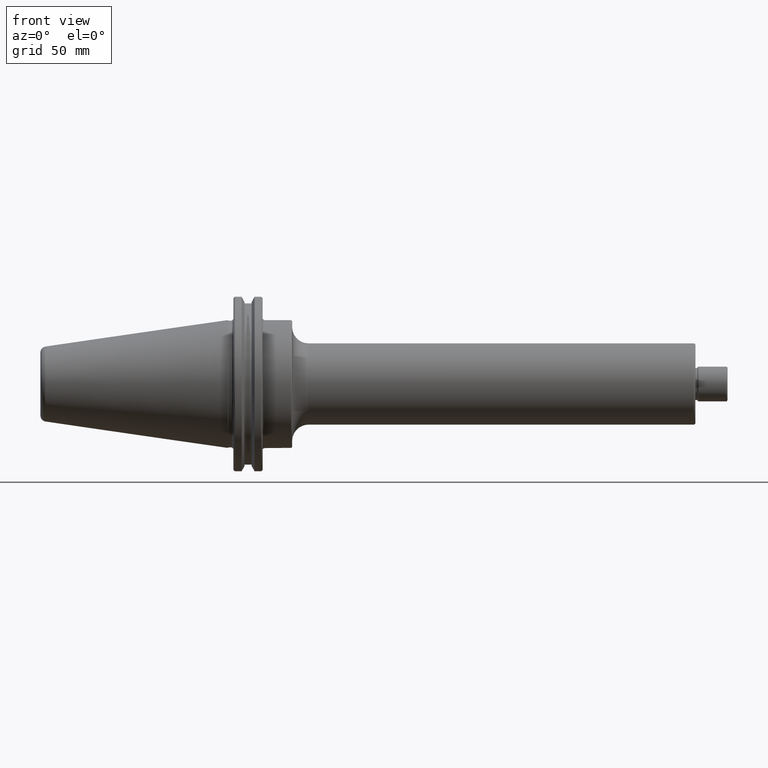
[diagram: clean part render]
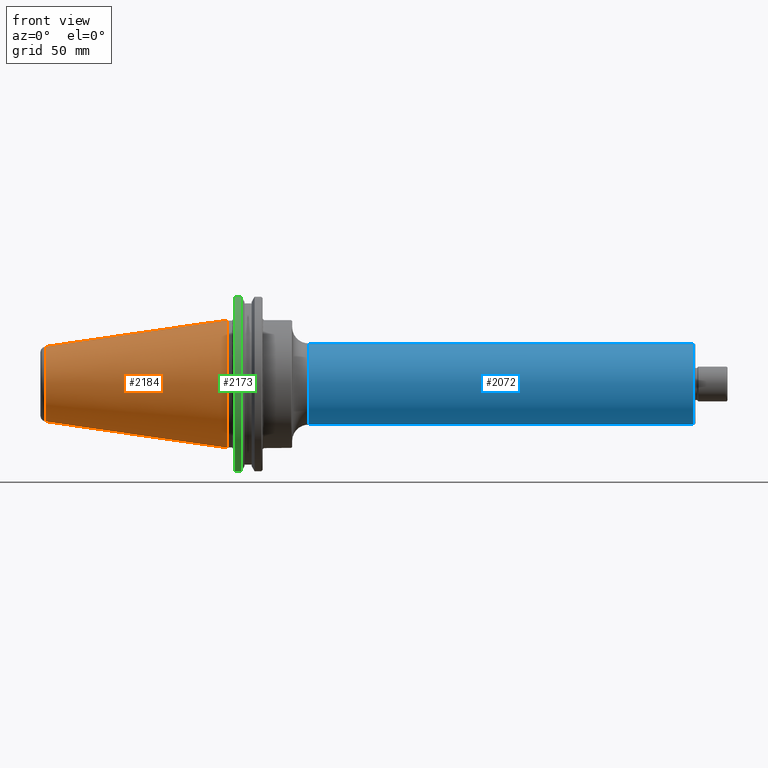
[diagram: same view with three faces highlighted in distinct colors, each labeled with its STEP entity id]
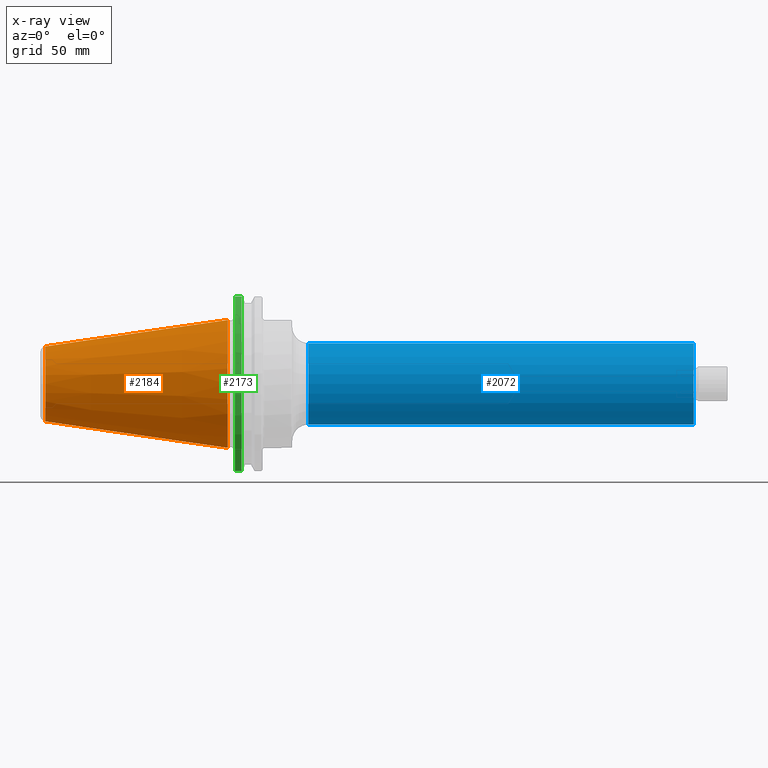
[diagram: x-ray of the same camera — body ghosted, the three highlighted faces saturated]
A machine part, front view with three faces highlighted in distinct colors.
The next image is the same camera in x-ray (body ghosted, the three faces saturated) — at least one of them is partly hidden behind the body in this view.
Their STEP definitions:

[orange] entity #2184 — the highlighted conical surface has half-angle 8.297 deg.
#58=CONICAL_SURFACE('',#2462,1.08333850135476,0.144809968037969);
#509=FACE_BOUND('',#951,.T.);
#622=CIRCLE('',#2449,1.375);
#628=CIRCLE('',#2460,0.806651410560632);
#751=FACE_OUTER_BOUND('',#950,.T.);
#950=EDGE_LOOP('',(#1974));
#951=EDGE_LOOP('',(#1975));
#1180=VERTEX_POINT('',#4570);
#1186=VERTEX_POINT('',#4587);
#1455=EDGE_CURVE('',#1180,#1180,#622,.T.);
#1461=EDGE_CURVE('',#1186,#1186,#628,.T.);
#1974=ORIENTED_EDGE('',*,*,#1455,.F.);
#1975=ORIENTED_EDGE('',*,*,#1461,.F.);
#2184=ADVANCED_FACE('',(#751,#509),#58,.T.);
#2449=AXIS2_PLACEMENT_3D('',#4571,#3041,#3042);
#2460=AXIS2_PLACEMENT_3D('',#4588,#3063,#3064);
#2462=AXIS2_PLACEMENT_3D('',#4590,#3067,#3068);
#3041=DIRECTION('center_axis',(1.,0.,0.));
#3042=DIRECTION('ref_axis',(-1.03378135458692E-13,1.,0.));
#3063=DIRECTION('center_axis',(-1.,-2.60094909854057E-15,3.87529083168744E-29));
#3064=DIRECTION('ref_axis',(2.60094909854057E-15,-1.,1.80477098442361E-30));
#3067=DIRECTION('center_axis',(1.,0.,0.));
#3068=DIRECTION('ref_axis',(-1.03378135458692E-13,1.,0.));
#4570=CARTESIAN_POINT('',(0.,1.375,0.));
#4571=CARTESIAN_POINT('Origin',(0.,0.,0.));
#4587=CARTESIAN_POINT('',(-3.89731652672248,0.806651410560644,-1.97566088538468E-16));
#4588=CARTESIAN_POINT('Origin',(-3.89731652672247,1.18890024684269E-14,
-9.87830442692334E-17));
#4590=CARTESIAN_POINT('Origin',(-2.,0.,0.));

[blue] entity #2072 — the highlighted cylindrical surface (bore or boss wall) has radius 22.225 mm, axis along (1, 0, 0).
#449=FACE_BOUND('',#779,.T.);
#517=CIRCLE('',#2229,0.875000000000001);
#520=CIRCLE('',#2234,0.875000000000001);
#639=FACE_OUTER_BOUND('',#778,.T.);
#778=EDGE_LOOP('',(#1483));
#779=EDGE_LOOP('',(#1484));
#998=VERTEX_POINT('',#3199);
#1001=VERTEX_POINT('',#3207);
#1199=EDGE_CURVE('',#998,#998,#517,.T.);
#1202=EDGE_CURVE('',#1001,#1001,#520,.T.);
#1483=ORIENTED_EDGE('',*,*,#1202,.F.);
#1484=ORIENTED_EDGE('',*,*,#1199,.F.);
#2017=CYLINDRICAL_SURFACE('',#2233,0.875000000000001);
#2072=ADVANCED_FACE('',(#639,#449),#2017,.T.);
#2229=AXIS2_PLACEMENT_3D('',#3200,#2507,#2508);
#2233=AXIS2_PLACEMENT_3D('',#3206,#2515,#2516);
#2234=AXIS2_PLACEMENT_3D('',#3208,#2517,#2518);
#2507=DIRECTION('center_axis',(-1.,0.,0.));
#2508=DIRECTION('ref_axis',(0.,-1.,-1.22464679914735E-16));
#2515=DIRECTION('center_axis',(1.,1.85241051355599E-48,0.));
#2516=DIRECTION('ref_axis',(0.,1.,0.));
#2517=DIRECTION('center_axis',(1.,1.85241051355599E-48,0.));
#2518=DIRECTION('ref_axis',(0.,-1.,1.22464679914735E-16));
#3199=CARTESIAN_POINT('',(1.73,0.875000000000001,0.));
#3200=CARTESIAN_POINT('Origin',(1.73,6.48343679744594E-49,0.));
#3206=CARTESIAN_POINT('Origin',(5.69,7.9838893134263E-48,0.));
#3207=CARTESIAN_POINT('',(9.96,0.875000000000001,0.));
#3208=CARTESIAN_POINT('Origin',(9.96,1.58936822063104E-47,0.));

[green] entity #2173 — the highlighted cylindrical surface (partial cylindrical patch) has radius 49.2125 mm, axis along (1, 0, 0).
#110=LINE('',#4342,#204);
#153=LINE('',#4552,#247);
#204=VECTOR('',#2822,0.393700787401575);
#247=VECTOR('',#3021,0.393700787401575);
#619=CIRCLE('',#2441,1.9375);
#620=CIRCLE('',#2443,1.9375);
#740=FACE_OUTER_BOUND('',#930,.T.);
#930=EDGE_LOOP('',(#1938,#1939,#1940,#1941));
#1123=VERTEX_POINT('',#4337);
#1124=VERTEX_POINT('',#4341);
#1177=VERTEX_POINT('',#4547);
#1178=VERTEX_POINT('',#4551);
#1356=EDGE_CURVE('',#1123,#1124,#110,.T.);
#1448=EDGE_CURVE('',#1177,#1178,#153,.T.);
#1450=EDGE_CURVE('',#1178,#1123,#619,.T.);
#1451=EDGE_CURVE('',#1177,#1124,#620,.T.);
#1938=ORIENTED_EDGE('',*,*,#1448,.F.);
#1939=ORIENTED_EDGE('',*,*,#1451,.T.);
#1940=ORIENTED_EDGE('',*,*,#1356,.F.);
#1941=ORIENTED_EDGE('',*,*,#1450,.F.);
#2055=CYLINDRICAL_SURFACE('',#2442,1.9375);
#2173=ADVANCED_FACE('',(#740),#2055,.T.);
#2441=AXIS2_PLACEMENT_3D('',#4557,#3024,#3025);
#2442=AXIS2_PLACEMENT_3D('',#4558,#3026,#3027);
#2443=AXIS2_PLACEMENT_3D('',#4559,#3028,#3029);
#2822=DIRECTION('',(1.,0.,0.));
#3021=DIRECTION('',(-1.,0.,0.));
#3024=DIRECTION('center_axis',(-1.,0.,0.));
#3025=DIRECTION('ref_axis',(1.03378135458692E-13,-1.,0.));
#3026=DIRECTION('center_axis',(1.,0.,0.));
#3027=DIRECTION('ref_axis',(-1.03378135458692E-13,1.,0.));
#3028=DIRECTION('center_axis',(-1.,0.,0.));
#3029=DIRECTION('ref_axis',(-1.03378135458692E-13,1.,0.));
#4337=CARTESIAN_POINT('',(0.155,-0.527075588370635,1.86442955730265));
#4341=CARTESIAN_POINT('',(0.299526127773358,-0.527075588370635,1.86442955730265));
#4342=CARTESIAN_POINT('',(0.4375,-0.527075588370635,1.86442955730265));
#4547=CARTESIAN_POINT('',(0.299526127773358,-0.527075588370557,-1.86442955730267));
#4551=CARTESIAN_POINT('',(0.155,-0.527075588370557,-1.86442955730267));
#4552=CARTESIAN_POINT('',(0.4375,-0.527075588370557,-1.86442955730267));
#4557=CARTESIAN_POINT('Origin',(0.155,0.,0.));
#4558=CARTESIAN_POINT('Origin',(0.4375,0.,0.));
#4559=CARTESIAN_POINT('Origin',(0.299526127773358,0.,0.));